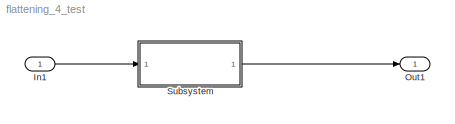
MODEL flattening_4_test
KIND model
BLOCK [Inport] In1
  IconDisplay = Port number
  SID = 1
BLOCK [Outport] Out1
  IconDisplay = Port number
  SID = 8
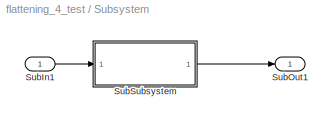
BLOCK [SubSystem] Subsystem
  Ports = [1, 1]
  RequestExecContextInheritance = off
  SID = 2
  Variant = off
BLOCK [Inport] Subsystem/SubIn1
  IconDisplay = Port number
  SID = 3
BLOCK [Outport] Subsystem/SubOut1
  IconDisplay = Port number
  SID = 7
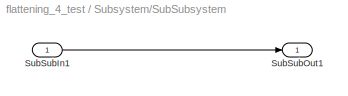
BLOCK [SubSystem] Subsystem/SubSubsystem
  Ports = [1, 1]
  RequestExecContextInheritance = off
  SID = 4
  Variant = off
BLOCK [Inport] Subsystem/SubSubsystem/SubSubIn1
  IconDisplay = Port number
  SID = 5
BLOCK [Outport] Subsystem/SubSubsystem/SubSubOut1
  IconDisplay = Port number
  SID = 6
LINE In1:1 -> Subsystem:1
LINE Subsystem/SubIn1:1 -> Subsystem/SubSubsystem:1
LINE Subsystem/SubSubsystem/SubSubIn1:1 -> Subsystem/SubSubsystem/SubSubOut1:1
LINE Subsystem/SubSubsystem:1 -> Subsystem/SubOut1:1
LINE Subsystem:1 -> Out1:1
